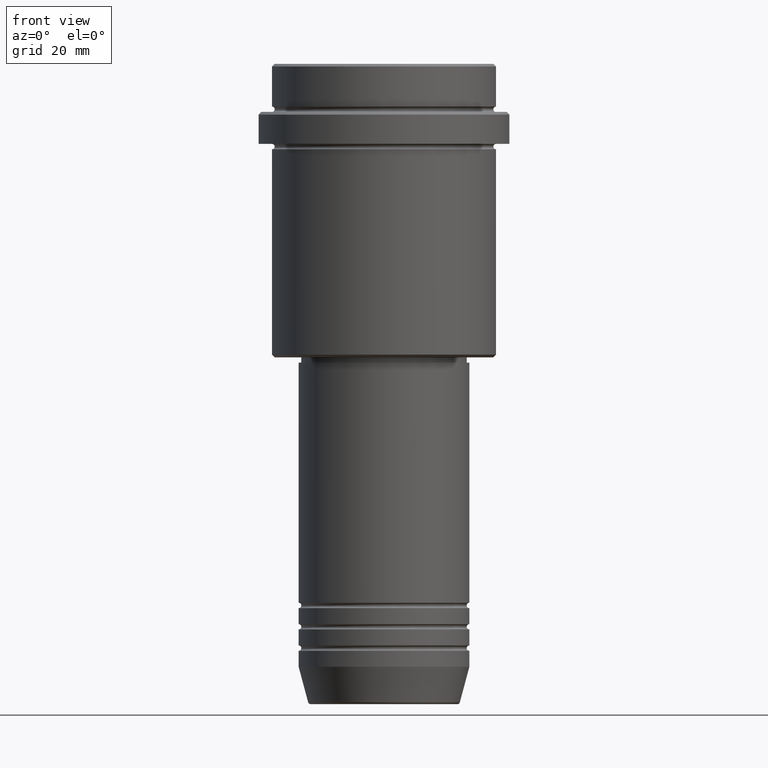
[diagram: clean part render]
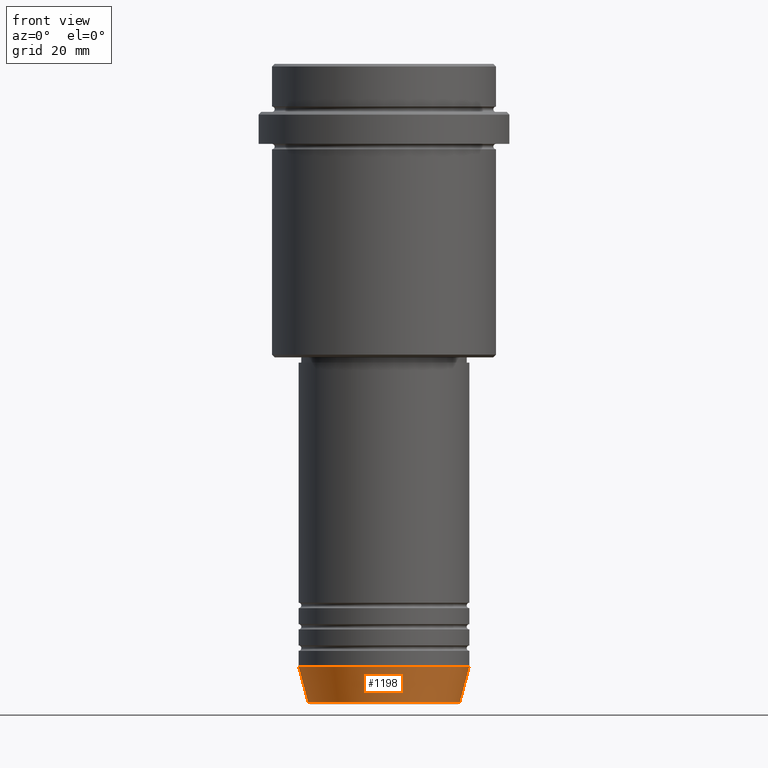
[diagram: same view with one face highlighted and labeled with its STEP entity id]
A machine part, front view. The second image highlights one B-rep face of the part: STEP entity #1198.
In plain terms, the highlighted conical surface has half-angle 15 deg.
Its self-contained STEP definition (entity closure, byte-faithful):
#2 = FACE_OUTER_BOUND ( 'NONE', #778, .T. ) ;
#46 = LINE ( 'NONE', #1372, #384 ) ;
#117 = DIRECTION ( 'NONE',  ( 1.000000000000000000, 0.000000000000000000, 0.000000000000000000 ) ) ;
#143 = LINE ( 'NONE', #783, #1287 ) ;
#151 = ORIENTED_EDGE ( 'NONE', *, *, #897, .F. ) ;
#193 = CARTESIAN_POINT ( 'NONE',  ( 0.000000000000000000, 0.000000000000000000, -113.0000000000000000 ) ) ;
#288 = AXIS2_PLACEMENT_3D ( 'NONE', #193, #982, #117 ) ;
#331 = DIRECTION ( 'NONE',  ( -0.000000000000000000, -0.000000000000000000, 1.000000000000000000 ) ) ;
#384 = VECTOR ( 'NONE', #398, 1000.000000000000000 ) ;
#393 = ORIENTED_EDGE ( 'NONE', *, *, #1099, .F. ) ;
#398 = DIRECTION ( 'NONE',  ( 0.2588190451025213501, 0.000000000000000000, 0.9659258262890680902 ) ) ;
#446 = CIRCLE ( 'NONE', #771, 14.22365507213718949 ) ;
#543 = DIRECTION ( 'NONE',  ( 1.000000000000000000, 0.000000000000000000, 0.000000000000000000 ) ) ;
#561 = VERTEX_POINT ( 'NONE', #1045 ) ;
#649 = VERTEX_POINT ( 'NONE', #1195 ) ;
#695 = ORIENTED_EDGE ( 'NONE', *, *, #1249, .T. ) ;
#732 = CARTESIAN_POINT ( 'NONE',  ( -16.00000000000000000, 1.959434878635765131E-15, -113.0000000000000000 ) ) ;
#743 = ORIENTED_EDGE ( 'NONE', *, *, #854, .T. ) ;
#771 = AXIS2_PLACEMENT_3D ( 'NONE', #859, #331, #1205 ) ;
#778 = EDGE_LOOP ( 'NONE', ( #151, #743, #695, #393 ) ) ;
#783 = CARTESIAN_POINT ( 'NONE',  ( -16.00000000000000000, 1.959434878635765131E-15, -113.0000000000000000 ) ) ;
#854 = EDGE_CURVE ( 'NONE', #649, #561, #446, .T. ) ;
#859 = CARTESIAN_POINT ( 'NONE',  ( 0.000000000000000000, 0.000000000000000000, -119.6294095225512564 ) ) ;
#877 = CARTESIAN_POINT ( 'NONE',  ( 16.00000000000000000, 0.000000000000000000, -113.0000000000000000 ) ) ;
#897 = EDGE_CURVE ( 'NONE', #649, #1416, #143, .T. ) ;
#910 = CONICAL_SURFACE ( 'NONE', #288, 16.00000000000000000, 0.2617993877991500740 ) ;
#966 = CARTESIAN_POINT ( 'NONE',  ( 0.000000000000000000, 0.000000000000000000, -113.0000000000000000 ) ) ;
#976 = CIRCLE ( 'NONE', #1206, 16.00000000000000000 ) ;
#982 = DIRECTION ( 'NONE',  ( -0.000000000000000000, -0.000000000000000000, 1.000000000000000000 ) ) ;
#1045 = CARTESIAN_POINT ( 'NONE',  ( 14.22365507213718949, 0.000000000000000000, -119.6294095225512564 ) ) ;
#1099 = EDGE_CURVE ( 'NONE', #1416, #1322, #976, .T. ) ;
#1195 = CARTESIAN_POINT ( 'NONE',  ( -14.22365507213718949, 1.850665122131323731E-15, -119.6294095225512564 ) ) ;
#1198 = ADVANCED_FACE ( 'NONE', ( #2 ), #910, .T. ) ;
#1205 = DIRECTION ( 'NONE',  ( 1.000000000000000000, 0.000000000000000000, 0.000000000000000000 ) ) ;
#1206 = AXIS2_PLACEMENT_3D ( 'NONE', #966, #1397, #543 ) ;
#1229 = DIRECTION ( 'NONE',  ( -0.2588190451025213501, 3.169619151431772337E-17, 0.9659258262890680902 ) ) ;
#1249 = EDGE_CURVE ( 'NONE', #561, #1322, #46, .T. ) ;
#1287 = VECTOR ( 'NONE', #1229, 1000.000000000000000 ) ;
#1322 = VERTEX_POINT ( 'NONE', #877 ) ;
#1372 = CARTESIAN_POINT ( 'NONE',  ( 16.00000000000000000, 0.000000000000000000, -113.0000000000000000 ) ) ;
#1397 = DIRECTION ( 'NONE',  ( -0.000000000000000000, -0.000000000000000000, 1.000000000000000000 ) ) ;
#1416 = VERTEX_POINT ( 'NONE', #732 ) ;